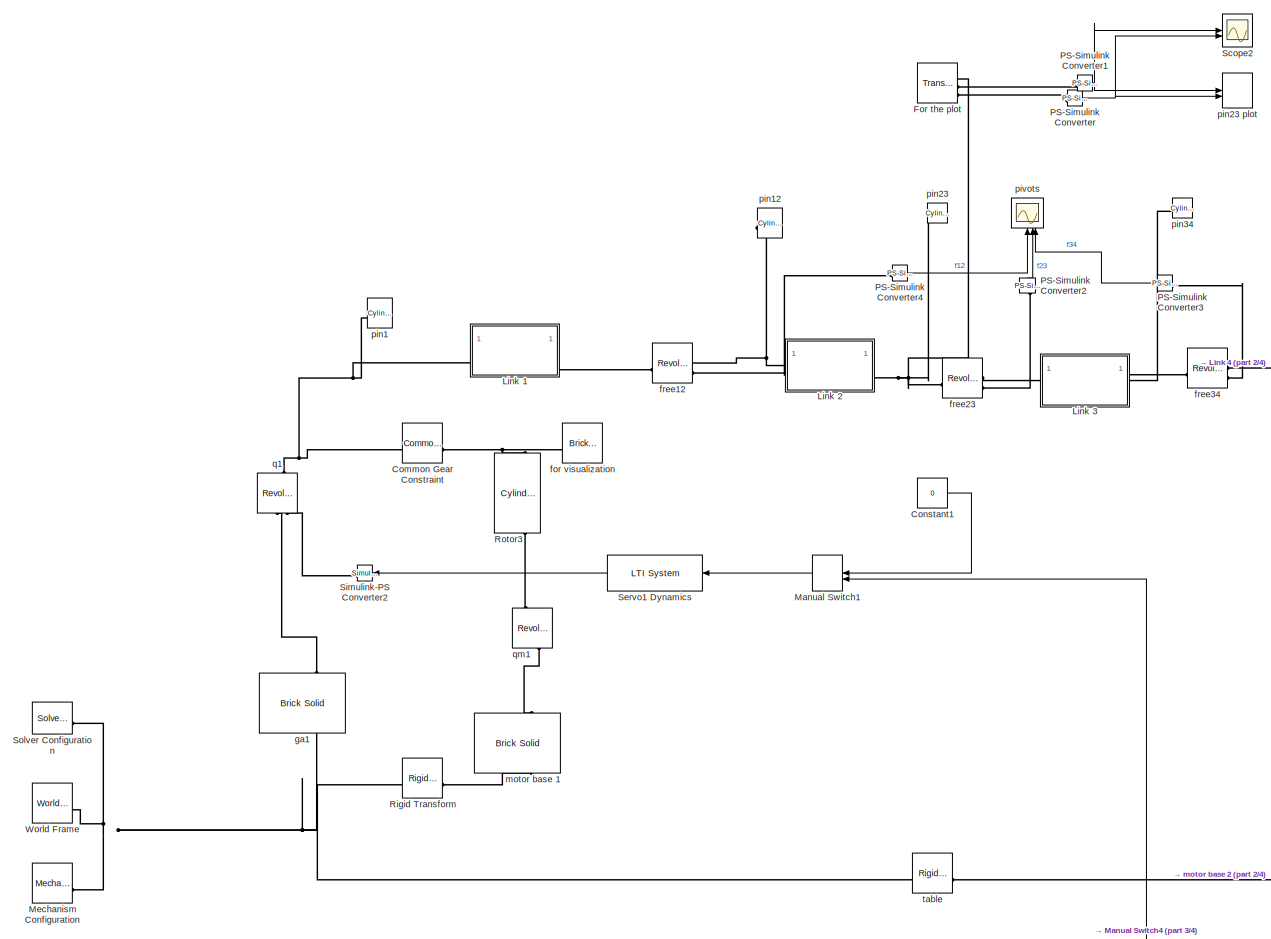
[diagram: root canvas - part 1/4, top center region]
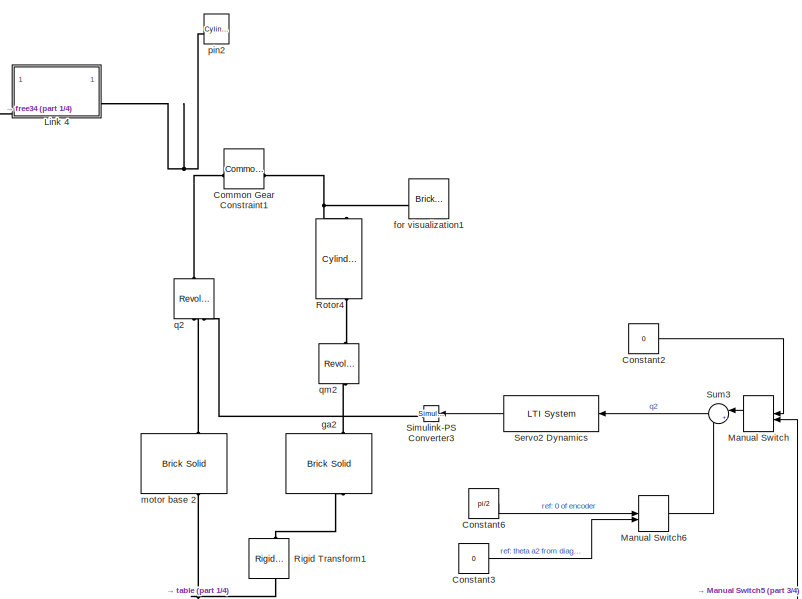
[diagram: root canvas - part 2/4, middle right region]
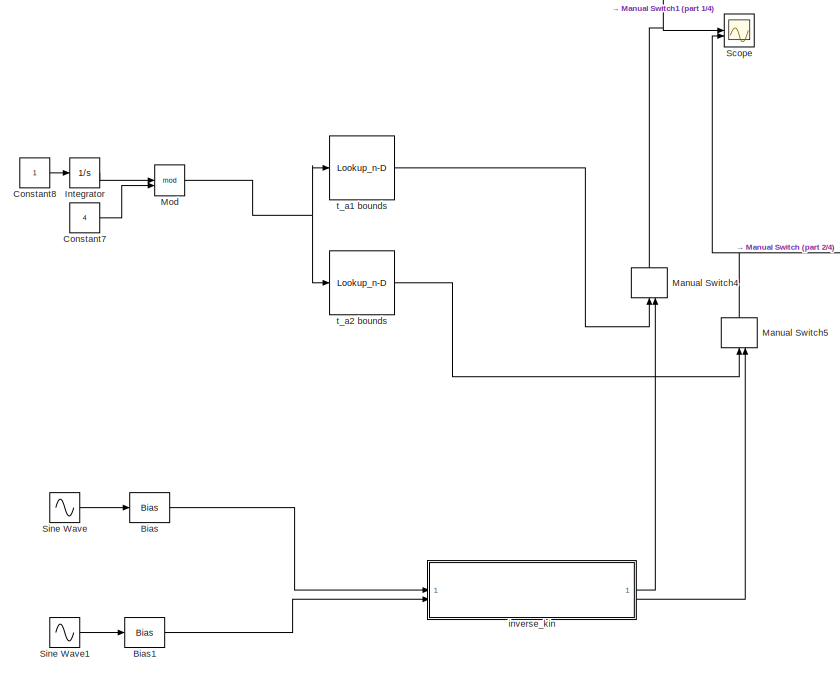
[diagram: root canvas - part 3/4, bottom center region]
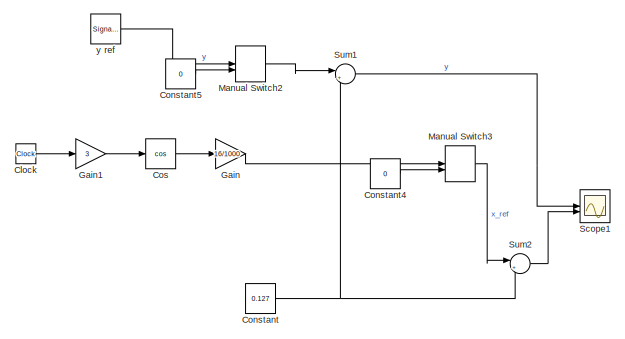
[diagram: root canvas - part 4/4, bottom left region]
MODEL slx_f50067ab16c9
KIND model
CONFIG AbsTol = auto
CONFIG EnableMultiTasking = on
CONFIG FixedStep = auto
CONFIG MaxStep = auto
CONFIG MinStep = auto
CONFIG RelTol = 1e-3
CONFIG SampleTimeConstraint = Unconstrained
CONFIG SolverName = VariableStepAuto
CONFIG StartTime = 0.0
CONFIG StopTime = 24
BLOCK [Bias] Bias
  Bias = 0.127
  SaturateOnIntegerOverflow = off
BLOCK [Bias] Bias1
  Bias = 0.127
  SaturateOnIntegerOverflow = off
BLOCK [Clock] Clock
BLOCK [Reference] Common Gear Constraint  REF=sm_lib/Gears and
Couplings/Gears/Common Gear
Constraint
  NameLocation = top
  SourceBlock = sm_lib/Gears and\nCouplings/Gears/Common Gear\nConstraint
  SourceType = Common Gear\nConstraint
BLOCK [Reference] Common Gear Constraint1  REF=sm_lib/Gears and
Couplings/Gears/Common Gear
Constraint
  NameLocation = top
  SourceBlock = sm_lib/Gears and\nCouplings/Gears/Common Gear\nConstraint
  SourceType = Common Gear\nConstraint
BLOCK [Constant] Constant
  Value = 0.127
BLOCK [Constant] Constant1
  Value = 0
BLOCK [Constant] Constant2
  Value = 0
BLOCK [Constant] Constant3
  Value = 0
BLOCK [Constant] Constant4
  Value = 0
BLOCK [Constant] Constant5
  Value = 0
BLOCK [Constant] Constant6
  Value = pi/2
BLOCK [Constant] Constant7
  Value = 4
BLOCK [Constant] Constant8
BLOCK [Trigonometry] Cos
  Operator = cos
BLOCK [Reference] For the plot  REF=sm_lib/Frames and
Transforms/Transform
Sensor
  SourceBlock = sm_lib/Frames and\nTransforms/Transform\nSensor
  SourceType = Transform\nSensor
BLOCK [Gain] Gain
  Gain = 16/1000
BLOCK [Gain] Gain1
  Gain = 3
BLOCK [Integrator] Integrator
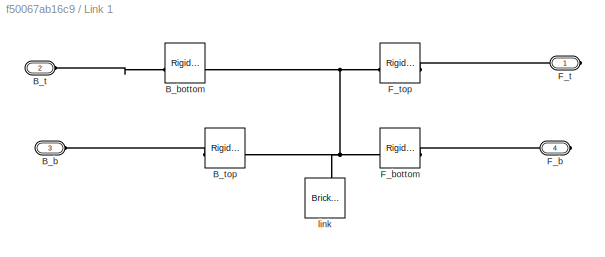
BLOCK [SubSystem] Link 1
BLOCK [PMIOPort] Link 1/B_b
  Port = 3
  Side = Left
BLOCK [Reference] Link 1/B_bottom  REF=sm_lib/Frames and
Transforms/Rigid
Transform
  SourceBlock = sm_lib/Frames and\nTransforms/Rigid\nTransform
  SourceType = Rigid\nTransform
BLOCK [PMIOPort] Link 1/B_t
  Port = 2
  Side = Left
BLOCK [Reference] Link 1/B_top  REF=sm_lib/Frames and
Transforms/Rigid
Transform
  SourceBlock = sm_lib/Frames and\nTransforms/Rigid\nTransform
  SourceType = Rigid\nTransform
BLOCK [PMIOPort] Link 1/F_b
  Port = 4
  Side = Right
BLOCK [Reference] Link 1/F_bottom   REF=sm_lib/Frames and
Transforms/Rigid
Transform
  SourceBlock = sm_lib/Frames and\nTransforms/Rigid\nTransform
  SourceType = Rigid\nTransform
BLOCK [PMIOPort] Link 1/F_t
  Side = Right
BLOCK [Reference] Link 1/F_top  REF=sm_lib/Frames and
Transforms/Rigid
Transform
  SourceBlock = sm_lib/Frames and\nTransforms/Rigid\nTransform
  SourceType = Rigid\nTransform
BLOCK [Reference] Link 1/link   REF=sm_lib/Body Elements/Brick Solid
  NameLocation = right
  SourceBlock = sm_lib/Body Elements/Brick Solid
  SourceType = Brick Solid
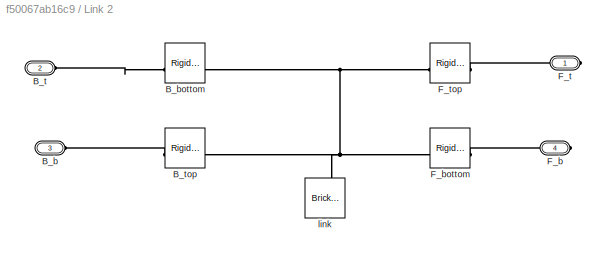
BLOCK [SubSystem] Link 2
BLOCK [PMIOPort] Link 2/B_b
  Port = 3
  Side = Left
BLOCK [Reference] Link 2/B_bottom  REF=sm_lib/Frames and
Transforms/Rigid
Transform
  SourceBlock = sm_lib/Frames and\nTransforms/Rigid\nTransform
  SourceType = Rigid\nTransform
BLOCK [PMIOPort] Link 2/B_t
  Port = 2
  Side = Left
BLOCK [Reference] Link 2/B_top  REF=sm_lib/Frames and
Transforms/Rigid
Transform
  SourceBlock = sm_lib/Frames and\nTransforms/Rigid\nTransform
  SourceType = Rigid\nTransform
BLOCK [PMIOPort] Link 2/F_b
  Port = 4
  Side = Right
BLOCK [Reference] Link 2/F_bottom   REF=sm_lib/Frames and
Transforms/Rigid
Transform
  SourceBlock = sm_lib/Frames and\nTransforms/Rigid\nTransform
  SourceType = Rigid\nTransform
BLOCK [PMIOPort] Link 2/F_t
  Side = Right
BLOCK [Reference] Link 2/F_top  REF=sm_lib/Frames and
Transforms/Rigid
Transform
  SourceBlock = sm_lib/Frames and\nTransforms/Rigid\nTransform
  SourceType = Rigid\nTransform
BLOCK [Reference] Link 2/link   REF=sm_lib/Body Elements/Brick Solid
  NameLocation = right
  SourceBlock = sm_lib/Body Elements/Brick Solid
  SourceType = Brick Solid
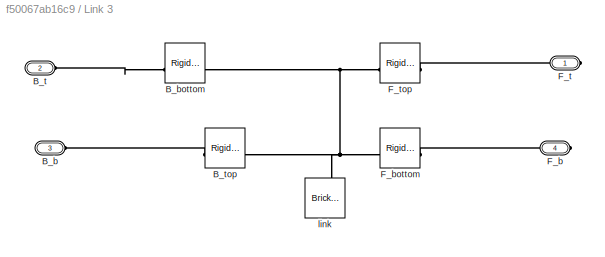
BLOCK [SubSystem] Link 3
BLOCK [PMIOPort] Link 3/B_b
  Port = 3
  Side = Left
BLOCK [Reference] Link 3/B_bottom  REF=sm_lib/Frames and
Transforms/Rigid
Transform
  SourceBlock = sm_lib/Frames and\nTransforms/Rigid\nTransform
  SourceType = Rigid\nTransform
BLOCK [PMIOPort] Link 3/B_t
  Port = 2
  Side = Left
BLOCK [Reference] Link 3/B_top  REF=sm_lib/Frames and
Transforms/Rigid
Transform
  SourceBlock = sm_lib/Frames and\nTransforms/Rigid\nTransform
  SourceType = Rigid\nTransform
BLOCK [PMIOPort] Link 3/F_b
  Port = 4
  Side = Right
BLOCK [Reference] Link 3/F_bottom   REF=sm_lib/Frames and
Transforms/Rigid
Transform
  SourceBlock = sm_lib/Frames and\nTransforms/Rigid\nTransform
  SourceType = Rigid\nTransform
BLOCK [PMIOPort] Link 3/F_t
  Side = Right
BLOCK [Reference] Link 3/F_top  REF=sm_lib/Frames and
Transforms/Rigid
Transform
  SourceBlock = sm_lib/Frames and\nTransforms/Rigid\nTransform
  SourceType = Rigid\nTransform
BLOCK [Reference] Link 3/link   REF=sm_lib/Body Elements/Brick Solid
  NameLocation = right
  SourceBlock = sm_lib/Body Elements/Brick Solid
  SourceType = Brick Solid
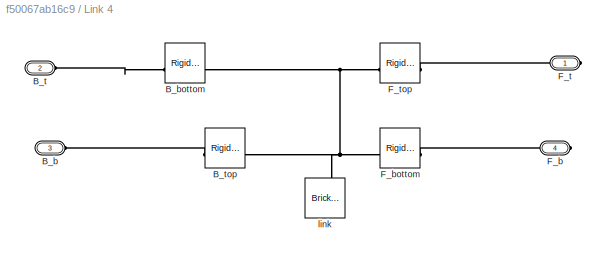
BLOCK [SubSystem] Link 4
BLOCK [PMIOPort] Link 4/B_b
  Port = 3
  Side = Left
BLOCK [Reference] Link 4/B_bottom  REF=sm_lib/Frames and
Transforms/Rigid
Transform
  SourceBlock = sm_lib/Frames and\nTransforms/Rigid\nTransform
  SourceType = Rigid\nTransform
BLOCK [PMIOPort] Link 4/B_t
  Port = 2
  Side = Left
BLOCK [Reference] Link 4/B_top  REF=sm_lib/Frames and
Transforms/Rigid
Transform
  SourceBlock = sm_lib/Frames and\nTransforms/Rigid\nTransform
  SourceType = Rigid\nTransform
BLOCK [PMIOPort] Link 4/F_b
  Port = 4
  Side = Right
BLOCK [Reference] Link 4/F_bottom   REF=sm_lib/Frames and
Transforms/Rigid
Transform
  SourceBlock = sm_lib/Frames and\nTransforms/Rigid\nTransform
  SourceType = Rigid\nTransform
BLOCK [PMIOPort] Link 4/F_t
  Side = Right
BLOCK [Reference] Link 4/F_top  REF=sm_lib/Frames and
Transforms/Rigid
Transform
  SourceBlock = sm_lib/Frames and\nTransforms/Rigid\nTransform
  SourceType = Rigid\nTransform
BLOCK [Reference] Link 4/link   REF=sm_lib/Body Elements/Brick Solid
  NameLocation = right
  SourceBlock = sm_lib/Body Elements/Brick Solid
  SourceType = Brick Solid
BLOCK [ManualSwitch] Manual Switch
  CurrentSetting = 0
  NameLocation = top
BLOCK [ManualSwitch] Manual Switch1
  CurrentSetting = 0
  NameLocation = top
BLOCK [ManualSwitch] Manual Switch2
BLOCK [ManualSwitch] Manual Switch3
BLOCK [ManualSwitch] Manual Switch4
  CurrentSetting = 0
  NameLocation = right
BLOCK [ManualSwitch] Manual Switch5
  CurrentSetting = 0
  NameLocation = right
BLOCK [ManualSwitch] Manual Switch6
BLOCK [Reference] Mechanism Configuration  REF=sm_lib/Utilities/Mechanism
Configuration
  SourceBlock = sm_lib/Utilities/Mechanism\nConfiguration
  SourceType = Mechanism\nConfiguration
BLOCK [Math] Mod
  Operator = mod
BLOCK [Reference] PS-Simulink Converter  REF=nesl_utility/PS-Simulink
Converter
  SourceBlock = nesl_utility/PS-Simulink\nConverter
  SourceType = PS-Simulink\nConverter
BLOCK [Reference] PS-Simulink Converter1  REF=nesl_utility/PS-Simulink
Converter
  SourceBlock = nesl_utility/PS-Simulink\nConverter
  SourceType = PS-Simulink\nConverter
BLOCK [Reference] PS-Simulink Converter2  REF=nesl_utility/PS-Simulink
Converter
  NameLocation = right
  SourceBlock = nesl_utility/PS-Simulink\nConverter
  SourceType = PS-Simulink\nConverter
BLOCK [Reference] PS-Simulink Converter3  REF=nesl_utility/PS-Simulink
Converter
  NameLocation = top
  SourceBlock = nesl_utility/PS-Simulink\nConverter
  SourceType = PS-Simulink\nConverter
BLOCK [Reference] PS-Simulink Converter4  REF=nesl_utility/PS-Simulink
Converter
  SourceBlock = nesl_utility/PS-Simulink\nConverter
  SourceType = PS-Simulink\nConverter
BLOCK [Reference] Rigid Transform  REF=sm_lib/Frames and
Transforms/Rigid
Transform
  SourceBlock = sm_lib/Frames and\nTransforms/Rigid\nTransform
  SourceType = Rigid\nTransform
BLOCK [Reference] Rigid Transform1  REF=sm_lib/Frames and
Transforms/Rigid
Transform
  NameLocation = right
  SourceBlock = sm_lib/Frames and\nTransforms/Rigid\nTransform
  SourceType = Rigid\nTransform
BLOCK [Reference] Rotor3  REF=sm_lib/Body Elements/Cylindrical Solid
  NameLocation = left
  SourceBlock = sm_lib/Body Elements/Cylindrical Solid
  SourceType = Cylindrical Solid
BLOCK [Reference] Rotor4  REF=sm_lib/Body Elements/Cylindrical Solid
  NameLocation = left
  SourceBlock = sm_lib/Body Elements/Cylindrical Solid
  SourceType = Cylindrical Solid
BLOCK [Scope] Scope
  Floating = off
  NumInputPorts = 2
  ScopeSpecificationString = Simulink.scopes.TimeScopeBlockCfg('CurrentConfiguration', extmgr.ConfigurationSet(extmgr.Configuration('Core','General UI',true),extmgr.Configuration('Core','Source UI',true),extmgr.Configuration('Sources','WiredSimulink',true,'DataLoggingVariableName','ScopeData1'),extmgr.Configuration('Visuals','Time Domain',true,'SerializedDisplays',{struct('MinYLimReal','-0.38841','MaxYLimReal','1.94107','YLab...<+1686ch>
BLOCK [Scope] Scope1
  Floating = off
  NumInputPorts = 2
  ScopeSpecificationString = Simulink.scopes.TimeScopeBlockCfg('CurrentConfiguration', extmgr.ConfigurationSet(extmgr.Configuration('Core','General UI',true),extmgr.Configuration('Core','Source UI',true),extmgr.Configuration('Sources','WiredSimulink',true,'DataLoggingVariableName','ScopeData3'),extmgr.Configuration('Visuals','Time Domain',true,'SerializedDisplays',{struct('MinYLimReal','0.102','MaxYLimReal','0.152','YLabelRea...<+1347ch>
BLOCK [Scope] Scope2
  Floating = off
  NumInputPorts = 2
  ScopeSpecificationString = Simulink.scopes.TimeScopeBlockCfg('CurrentConfiguration', extmgr.ConfigurationSet(extmgr.Configuration('Core','General UI',true),extmgr.Configuration('Core','Source UI',true),extmgr.Configuration('Sources','WiredSimulink',true,'DataLoggingVariableName','ScopeData2'),extmgr.Configuration('Visuals','Time Domain',true,'SerializedDisplays',{struct('MinYLimReal','0.10294','MaxYLimReal','0.15122','YLabe...<+1403ch>
BLOCK [Reference] Servo1 Dynamics  REF=cstblocks/LTI System
  NameLocation = top
  SourceBlock = cstblocks/LTI System
  SourceType = LTI Block
BLOCK [Reference] Servo2 Dynamics  REF=cstblocks/LTI System
  NameLocation = top
  SourceBlock = cstblocks/LTI System
  SourceType = LTI Block
BLOCK [Reference] Simulink-PS Converter2  REF=nesl_utility/Simulink-PS
Converter
  NameLocation = top
  SourceBlock = nesl_utility/Simulink-PS\nConverter
  SourceType = Simulink-PS\nConverter
BLOCK [Reference] Simulink-PS Converter3  REF=nesl_utility/Simulink-PS
Converter
  NameLocation = top
  SourceBlock = nesl_utility/Simulink-PS\nConverter
  SourceType = Simulink-PS\nConverter
BLOCK [Sin] Sine Wave
  Amplitude = 0.03
  Frequency = 2
  Phase = pi/2
  SampleTime = 0
BLOCK [Sin] Sine Wave1
  Amplitude = 0.03
  Frequency = 2
  SampleTime = 0
BLOCK [Reference] Solver Configuration  REF=nesl_utility/Solver
Configuration
  SourceBlock = nesl_utility/Solver\nConfiguration
  SourceType = Solver\nConfiguration
BLOCK [Sum] Sum1
  Inputs = |++
BLOCK [Sum] Sum2
  Inputs = |++
BLOCK [Sum] Sum3
  Inputs = |+-
  NameLocation = top
BLOCK [Reference] World Frame  REF=sm_lib/Frames and
Transforms/World Frame
  SourceBlock = sm_lib/Frames and\nTransforms/World Frame
  SourceType = World Frame
BLOCK [Reference] for visualization  REF=sm_lib/Body Elements/Brick Solid
  NameLocation = top
  SourceBlock = sm_lib/Body Elements/Brick Solid
  SourceType = Brick Solid
BLOCK [Reference] for visualization1  REF=sm_lib/Body Elements/Brick Solid
  NameLocation = top
  SourceBlock = sm_lib/Body Elements/Brick Solid
  SourceType = Brick Solid
BLOCK [Reference] free12  REF=sm_lib/Joints/Revolute Joint
  SourceBlock = sm_lib/Joints/Revolute Joint
  SourceType = Revolute Joint
BLOCK [Reference] free23  REF=sm_lib/Joints/Revolute Joint
  SourceBlock = sm_lib/Joints/Revolute Joint
  SourceType = Revolute Joint
BLOCK [Reference] free34  REF=sm_lib/Joints/Revolute Joint
  SourceBlock = sm_lib/Joints/Revolute Joint
  SourceType = Revolute Joint
BLOCK [Reference] ga1  REF=sm_lib/Body Elements/Brick Solid
  NameLocation = left
  SourceBlock = sm_lib/Body Elements/Brick Solid
  SourceType = Brick Solid
BLOCK [Reference] ga2  REF=sm_lib/Body Elements/Brick Solid
  NameLocation = left
  SourceBlock = sm_lib/Body Elements/Brick Solid
  SourceType = Brick Solid
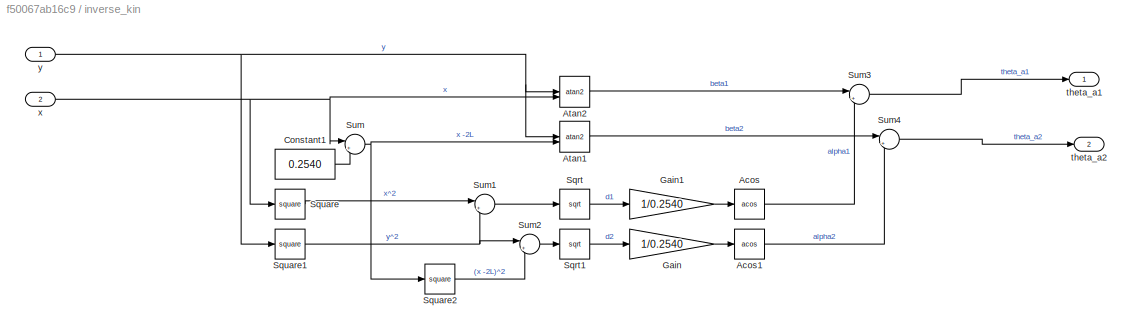
BLOCK [SubSystem] inverse_kin 
BLOCK [Trigonometry] inverse_kin /Acos
  Operator = acos
BLOCK [Trigonometry] inverse_kin /Acos1
  Operator = acos
BLOCK [Trigonometry] inverse_kin /Atan1
  Operator = atan2
BLOCK [Trigonometry] inverse_kin /Atan2
  Operator = atan2
BLOCK [Constant] inverse_kin /Constant1
  Value = 0.2540
BLOCK [Gain] inverse_kin /Gain
  Gain = 1/0.2540
BLOCK [Gain] inverse_kin /Gain1
  Gain = 1/0.2540
BLOCK [Sqrt] inverse_kin /Sqrt
BLOCK [Sqrt] inverse_kin /Sqrt1
BLOCK [Math] inverse_kin /Square
  Operator = square
BLOCK [Math] inverse_kin /Square1
  Operator = square
BLOCK [Math] inverse_kin /Square2
  Operator = square
BLOCK [Sum] inverse_kin /Sum
  Inputs = |+-
BLOCK [Sum] inverse_kin /Sum1
  Inputs = |++
BLOCK [Sum] inverse_kin /Sum2
  Inputs = |++
BLOCK [Sum] inverse_kin /Sum3
  Inputs = |+-
BLOCK [Sum] inverse_kin /Sum4
  Inputs = |+-
BLOCK [Outport] inverse_kin /theta_a1
BLOCK [Outport] inverse_kin /theta_a2
  Port = 2
BLOCK [Inport] inverse_kin /x
  Port = 2
BLOCK [Inport] inverse_kin /y
BLOCK [Reference] motor base 1  REF=sm_lib/Body Elements/Brick Solid
  NameLocation = left
  SourceBlock = sm_lib/Body Elements/Brick Solid
  SourceType = Brick Solid
BLOCK [Reference] motor base 2  REF=sm_lib/Body Elements/Brick Solid
  NameLocation = left
  SourceBlock = sm_lib/Body Elements/Brick Solid
  SourceType = Brick Solid
BLOCK [Reference] pin1  REF=sm_lib/Body Elements/Cylindrical Solid
  SourceBlock = sm_lib/Body Elements/Cylindrical Solid
  SourceType = Cylindrical Solid
BLOCK [Reference] pin12  REF=sm_lib/Body Elements/Cylindrical Solid
  SourceBlock = sm_lib/Body Elements/Cylindrical Solid
  SourceType = Cylindrical Solid
BLOCK [Reference] pin2  REF=sm_lib/Body Elements/Cylindrical Solid
  SourceBlock = sm_lib/Body Elements/Cylindrical Solid
  SourceType = Cylindrical Solid
BLOCK [Reference] pin23  REF=sm_lib/Body Elements/Cylindrical Solid
  SourceBlock = sm_lib/Body Elements/Cylindrical Solid
  SourceType = Cylindrical Solid
BLOCK [Record] pin23 plot
  CompatibilityTag = XY
  FileSettingsInternal = {"entries":[{"content":{"excelSettings":{"content":{},"type":"Streamout.ExcelSettings"}},"type":"Streamout.FileSettingStorage","uuid":""}],"packageUris":["http:\/\/schema.mathworks.com\/mf0\/streamout_blocks\/R2020a"],"version":"1.0"}
  Layout = [1 1]
  SignalsInternal = {"entries":[{"content":{"signals":[{"content":{"blockPath":[],"dimensions":[1],"domain":"","lineColor":"#a2142f","plots":[ 1 ],"port":1,"signalID":1,"signalName":"PS-Simulink\nConverter1"},"type":"RecordBlkView.Signal","uuid":""},{"content":{"blockPath":[],"dimensions":[1],"domain":"","lineColor":"#139fff","plots":[ 1 ],"port":2,"signalID":2,"signalName":"PS-Simulink\nConverter"},"type":"RecordBlk...<+169ch>
  VisualizationBindings = {"xyplotplugin":{"info":[{"series":[{"bindingParametersList":[{"parameter":"X-Axis","signalID":1,"signalName":"PS-Simulink\nConverter1"},{"parameter":"Y-Axis","signalID":2,"signalName":"PS-Simulink\nConverter"}],"seriesID":0}],"subplotID":1}]}}
  st = -1
BLOCK [Reference] pin34  REF=sm_lib/Body Elements/Cylindrical Solid
  SourceBlock = sm_lib/Body Elements/Cylindrical Solid
  SourceType = Cylindrical Solid
BLOCK [Scope] pivots
  Floating = off
  NameLocation = right
  NumInputPorts = 3
  ScopeSpecificationString = Simulink.scopes.TimeScopeBlockCfg('CurrentConfiguration', extmgr.ConfigurationSet(extmgr.Configuration('Core','General UI',true),extmgr.Configuration('Core','Source UI',true),extmgr.Configuration('Sources','WiredSimulink',true,'DataLoggingVariableName','ScopeData1'),extmgr.Configuration('Visuals','Time Domain',true,'SerializedDisplays',{struct('MinYLimReal','-1.98164','MaxYLimReal','1.98186','YLab...<+1401ch>
BLOCK [Reference] q1  REF=sm_lib/Joints/Revolute Joint
  NameLocation = right
  SourceBlock = sm_lib/Joints/Revolute Joint
  SourceType = Revolute Joint
BLOCK [Reference] q2  REF=sm_lib/Joints/Revolute Joint
  NameLocation = right
  SourceBlock = sm_lib/Joints/Revolute Joint
  SourceType = Revolute Joint
BLOCK [Reference] qm1  REF=sm_lib/Joints/Revolute Joint
  NameLocation = right
  SourceBlock = sm_lib/Joints/Revolute Joint
  SourceType = Revolute Joint
BLOCK [Reference] qm2  REF=sm_lib/Joints/Revolute Joint
  NameLocation = right
  SourceBlock = sm_lib/Joints/Revolute Joint
  SourceType = Revolute Joint
BLOCK [Lookup_n-D] t_a1 bounds
  BreakpointsForDimension1 = [0:4]
  InputPortMap = u0
  InternalRulePriority = Speed
  NumberOfTableDimensions = 1
  RndMeth = Simplest
  Table = deg2rad([-22 -22 35 35 -22])
BLOCK [Lookup_n-D] t_a2 bounds
  BreakpointsForDimension1 = [0:4]
  InputPortMap = u0
  InternalRulePriority = Speed
  NumberOfTableDimensions = 1
  RndMeth = Simplest
  Table = deg2rad([22 8 8 22 22])
BLOCK [Reference] table  REF=sm_lib/Frames and
Transforms/Rigid
Transform
  SourceBlock = sm_lib/Frames and\nTransforms/Rigid\nTransform
  SourceType = Rigid\nTransform
BLOCK [SignalGenerator] y ref
  Amplitude = 20/1000
  Frequency = 2
  Units = rad/sec
LINE Bias1:1 -> inverse_kin :2
LINE Bias:1 -> inverse_kin :1
LINE Clock:1 -> Gain1:1
LINE Constant1:1 -> Manual Switch1:1
LINE Constant2:1 -> Manual Switch:1
LINE Constant3:1 -> Manual Switch6:2
LINE Constant4:1 -> Manual Switch3:2
LINE Constant5:1 -> Manual Switch2:2
LINE Constant6:1 -> Manual Switch6:1
LINE Constant7:1 -> Mod:2
LINE Constant8:1 -> Integrator:1
NET Constant:1 -> Sum1:2, Sum2:2
LINE Cos:1 -> Gain:1
LINE Gain1:1 -> Cos:1
LINE Gain:1 -> Manual Switch3:1
LINE Integrator:1 -> Mod:1
LINE Manual Switch1:1 -> Servo1 Dynamics:1
LINE Manual Switch2:1 -> Sum1:1
LINE Manual Switch3:1 -> Sum2:1
NET Manual Switch4:1 -> Manual Switch1:2, Scope:1
NET Manual Switch5:1 -> Manual Switch:2, Scope:2
LINE Manual Switch6:1 -> Sum3:2
LINE Manual Switch:1 -> Sum3:1
NET Mod:1 -> t_a1 bounds:1, t_a2 bounds:1
NET PS-Simulink Converter1:1 -> Scope2:1, pin23 plot:1
LINE PS-Simulink Converter2:1 -> pivots:2
LINE PS-Simulink Converter3:1 -> pivots:3
LINE PS-Simulink Converter4:1 -> pivots:1
NET PS-Simulink Converter:1 -> Scope2:2, pin23 plot:2
LINE Servo1 Dynamics:1 -> Simulink-PS Converter2:1
LINE Servo2 Dynamics:1 -> Simulink-PS Converter3:1
LINE Sine Wave1:1 -> Bias1:1
LINE Sine Wave:1 -> Bias:1
LINE Sum1:1 -> Scope1:1
LINE Sum2:1 -> Scope1:2
LINE Sum3:1 -> Servo2 Dynamics:1
LINE inverse_kin /Acos1:1 -> inverse_kin /Sum4:2
LINE inverse_kin /Acos:1 -> inverse_kin /Sum3:2
LINE inverse_kin /Atan1:1 -> inverse_kin /Sum4:1
LINE inverse_kin /Atan2:1 -> inverse_kin /Sum3:1
LINE inverse_kin /Constant1:1 -> inverse_kin /Sum:2
LINE inverse_kin /Gain1:1 -> inverse_kin /Acos:1
LINE inverse_kin /Gain:1 -> inverse_kin /Acos1:1
LINE inverse_kin /Sqrt1:1 -> inverse_kin /Gain:1
LINE inverse_kin /Sqrt:1 -> inverse_kin /Gain1:1
NET inverse_kin /Square1:1 -> inverse_kin /Sum1:2, inverse_kin /Sum2:1
LINE inverse_kin /Square2:1 -> inverse_kin /Sum2:2
LINE inverse_kin /Square:1 -> inverse_kin /Sum1:1
LINE inverse_kin /Sum1:1 -> inverse_kin /Sqrt:1
LINE inverse_kin /Sum2:1 -> inverse_kin /Sqrt1:1
LINE inverse_kin /Sum3:1 -> inverse_kin /theta_a1:1
LINE inverse_kin /Sum4:1 -> inverse_kin /theta_a2:1
NET inverse_kin /Sum:1 -> inverse_kin /Atan1:2, inverse_kin /Square2:1
NET inverse_kin /x:1 -> inverse_kin /Atan2:2, inverse_kin /Square:1, inverse_kin /Sum:1
NET inverse_kin /y:1 -> inverse_kin /Atan1:1, inverse_kin /Atan2:1, inverse_kin /Square1:1
LINE inverse_kin :1 -> Manual Switch4:2
LINE inverse_kin :2 -> Manual Switch5:2
LINE t_a1 bounds:1 -> Manual Switch4:1
LINE t_a2 bounds:1 -> Manual Switch5:1
LINE y ref:1 -> Manual Switch2:1
PNET net1: Common Gear Constraint1:LConn1 -- Rotor4:LConn1 -- for visualization1:RConn1
PNET net2: Common Gear Constraint1:RConn1 -- Link 4:RConn2 -- pin2:LConn1 -- q2:RConn1
PNET net3: Common Gear Constraint:LConn1 -- Rotor3:LConn1 -- for visualization:RConn1
PNET net4: Common Gear Constraint:RConn1 -- Link 1:LConn2 -- pin1:LConn1 -- q1:RConn1
PNET net5: For the plot:RConn1 -- Link 2:RConn2 -- free23:LConn1 -- pin23:LConn1
PLINE For the plot:RConn2 -- PS-Simulink Converter1:LConn1
PLINE For the plot:RConn3 -- PS-Simulink Converter:LConn1
PLINE Link 1/B_b:RConn1 -- Link 1/B_top:LConn1
PLINE Link 1/B_bottom:LConn1 -- Link 1/B_t:RConn1
PNET net6: Link 1/B_bottom:RConn1 -- Link 1/B_top:RConn1 -- Link 1/F_bottom :LConn1 -- Link 1/F_top:LConn1 -- Link 1/link :RConn1
PLINE Link 1/F_b:RConn1 -- Link 1/F_bottom :RConn1
PLINE Link 1/F_t:RConn1 -- Link 1/F_top:RConn1
PLINE Link 1:RConn2 -- free12:LConn1
PLINE Link 2/B_b:RConn1 -- Link 2/B_top:LConn1
PLINE Link 2/B_bottom:LConn1 -- Link 2/B_t:RConn1
PNET net7: Link 2/B_bottom:RConn1 -- Link 2/B_top:RConn1 -- Link 2/F_bottom :LConn1 -- Link 2/F_top:LConn1 -- Link 2/link :RConn1
PLINE Link 2/F_b:RConn1 -- Link 2/F_bottom :RConn1
PLINE Link 2/F_t:RConn1 -- Link 2/F_top:RConn1
PNET net8: Link 2:LConn1 -- free12:RConn1 -- pin12:LConn1
PLINE Link 3/B_b:RConn1 -- Link 3/B_top:LConn1
PLINE Link 3/B_bottom:LConn1 -- Link 3/B_t:RConn1
PNET net9: Link 3/B_bottom:RConn1 -- Link 3/B_top:RConn1 -- Link 3/F_bottom :LConn1 -- Link 3/F_top:LConn1 -- Link 3/link :RConn1
PLINE Link 3/F_b:RConn1 -- Link 3/F_bottom :RConn1
PLINE Link 3/F_t:RConn1 -- Link 3/F_top:RConn1
PLINE Link 3:LConn1 -- free23:RConn1
PNET net10: Link 3:RConn1 -- free34:LConn1 -- pin34:LConn1
PLINE Link 4/B_b:RConn1 -- Link 4/B_top:LConn1
PLINE Link 4/B_bottom:LConn1 -- Link 4/B_t:RConn1
PNET net11: Link 4/B_bottom:RConn1 -- Link 4/B_top:RConn1 -- Link 4/F_bottom :LConn1 -- Link 4/F_top:LConn1 -- Link 4/link :RConn1
PLINE Link 4/F_b:RConn1 -- Link 4/F_bottom :RConn1
PLINE Link 4/F_t:RConn1 -- Link 4/F_top:RConn1
PLINE Link 4:LConn2 -- free34:RConn1
PNET net12: Mechanism Configuration:RConn1 -- Rigid Transform:LConn1 -- Solver Configuration:RConn1 -- World Frame:RConn1 -- ga1:RConn1 -- table:LConn1
PLINE PS-Simulink Converter2:LConn1 -- free23:RConn2
PLINE PS-Simulink Converter3:LConn1 -- free34:RConn2
PLINE PS-Simulink Converter4:LConn1 -- free12:RConn2
PNET net13: Rigid Transform1:LConn1 -- motor base 2:RConn1 -- table:RConn1
PLINE Rigid Transform1:RConn1 -- ga2:RConn1
PLINE Rigid Transform:RConn1 -- motor base 1:RConn1
PLINE Rotor3:RConn1 -- qm1:RConn1
PLINE Rotor4:RConn1 -- qm2:RConn1
PLINE Simulink-PS Converter2:RConn1 -- q1:LConn2
PLINE Simulink-PS Converter3:RConn1 -- q2:LConn2
PLINE ga1:LConn1 -- q1:LConn1
PLINE ga2:LConn1 -- qm2:LConn1
PLINE motor base 1:LConn1 -- qm1:LConn1
PLINE motor base 2:LConn1 -- q2:LConn1
note: NET lines group one-source signal fan-out (src -> all destinations, sorted); 1:1 wires keep LINE; PNET lines group multi-terminal physical nets as a canonical sorted terminal list (undirected conserving connections); 2-terminal nets keep the pairwise PLINE form
